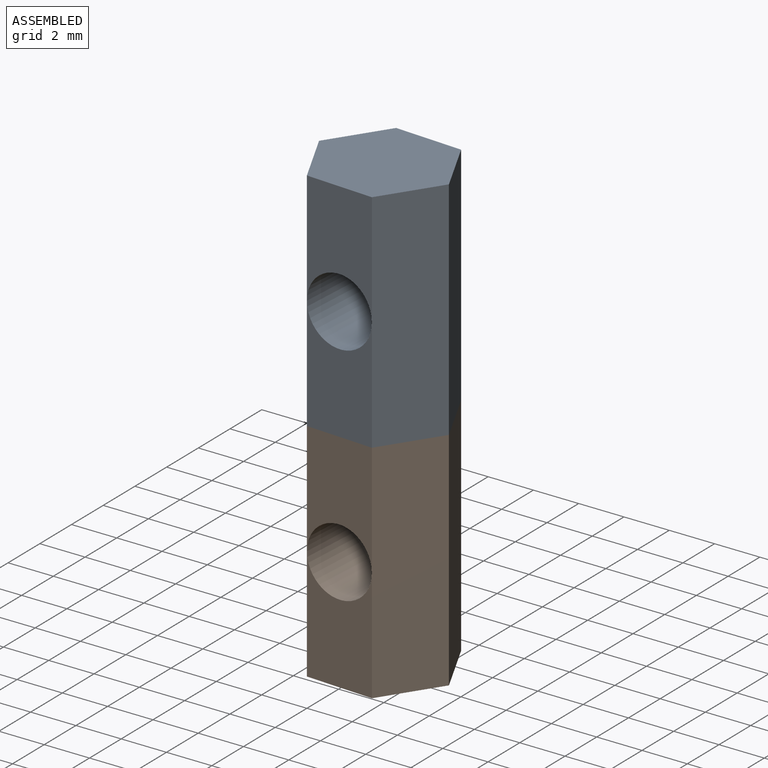
[diagram: assembled view]
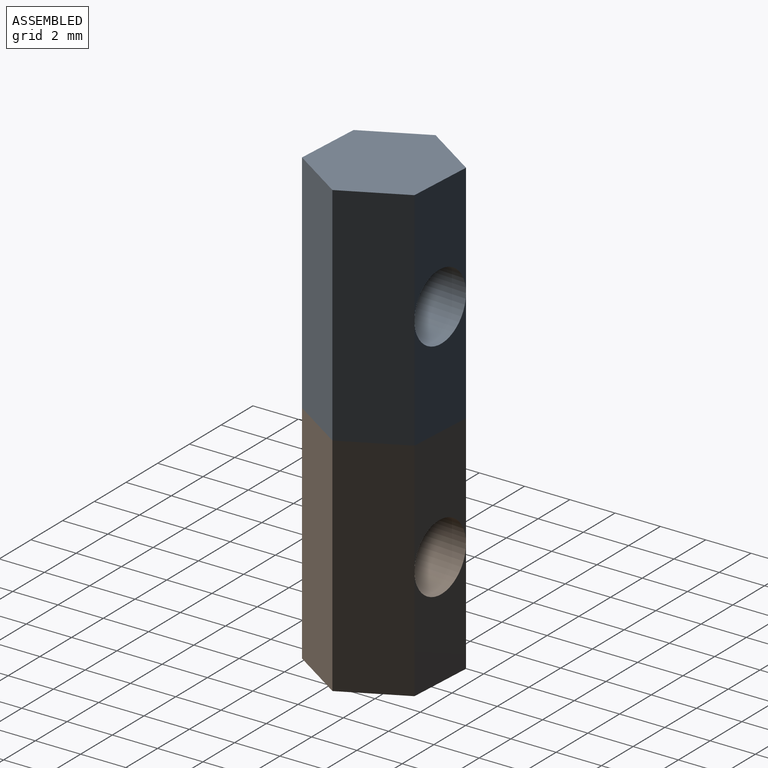
[diagram: assembled view, second angle]
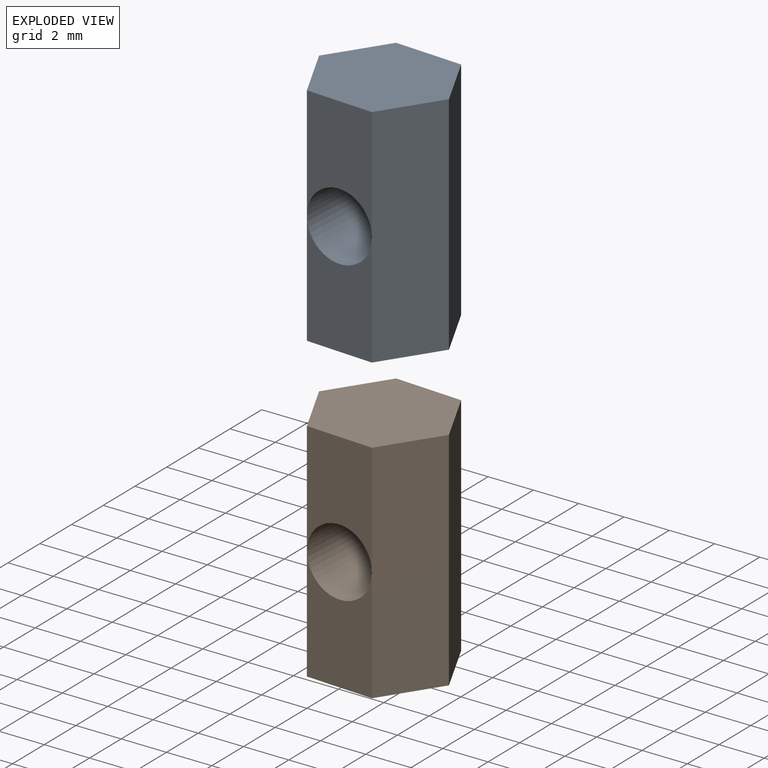
[diagram: exploded view]
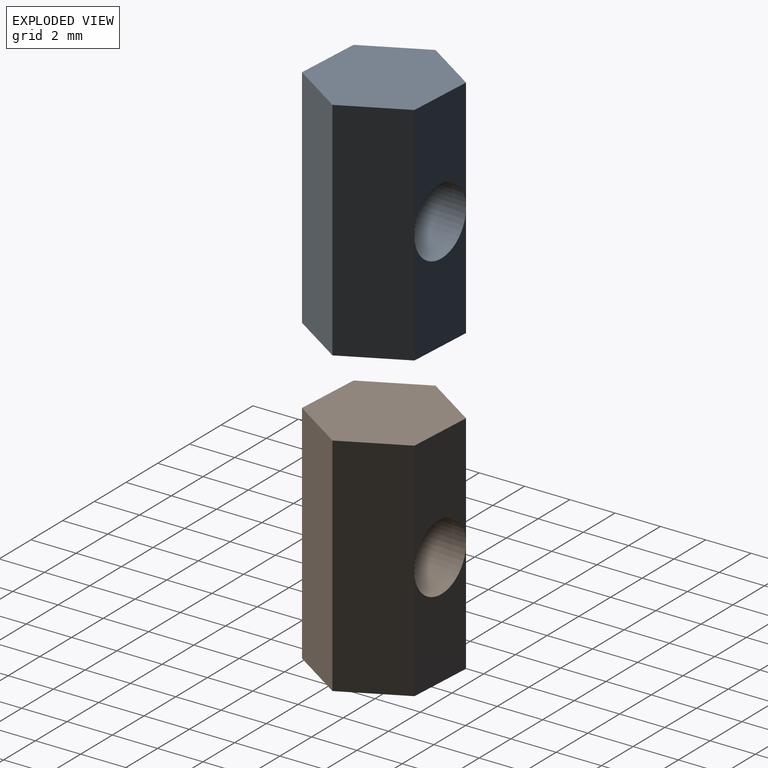
[diagram: exploded view, second angle]
ASSEMBLY  parts=2 mates=3
PART A: 11 faces, bbox 6x5.4x10 mm
  f0: plane 5x2.99mm, normal (-0.06,1,0), area 11.5mm2, adj f3,f5,f9,f10
  f1: plane 5x2.99mm, normal (0.06,-1,0), area 11.5mm2, adj f2,f6,f8,f10
  f2: plane 10x2.68mm, normal (0.89,-0.45,0), area 30mm2, adj f1,f3,f7,f8,f9
  f3: plane 10x2.5mm, normal (0.83,0.55,0), area 30mm2, adj f0,f2,f4,f8,f9
  f4: plane 5x2.99mm, normal (-0.06,1,0), area 11.5mm2, adj f3,f5,f8,f10
  f5: plane 10x2.68mm, normal (-0.89,0.45,0), area 30mm2, adj f0,f4,f6,f8,f9
  f6: plane 10x2.5mm, normal (-0.83,-0.55,0), area 30mm2, adj f1,f5,f7,f8,f9
  f7: plane 5x2.99mm, normal (0.06,-1,0), area 11.5mm2, adj f2,f6,f9,f10
  f8: plane 5.99x5.37mm, normal (0,0,1), area 23.4mm2, adj f1,f2,f3,f4,f5,f6
  f9: plane 5.99x5.37mm, normal (0,0,-1), area 23.4mm2, adj f0,f2,f3,f5,f6,f7
  f10: cylinder r=1.5mm len=5.37mm, axis (0.06,-1,0), area 49mm2, adj f0,f1,f4,f7
PART B: same geometry as A
PLACE A rot(axis=(1,0,0),180deg) t=(9.82,0.27,16.15)mm
PLACE B rot(axis=(0,0,-1),6.9deg) t=(9.82,0.27,-3.85)mm
MATE planar A.f8 <-> B.f8  axis (0,0,-1) through (9.82,0.27,6.15)mm
MATE planar A.f4 <-> B.f1  axis (-0.06,-1,0) through (9.66,-2.32,8.07)mm
MATE parallel A.f3 <-> B.f2  axis (0.83,-0.55,0) through (11.98,-1.16,11.15)mm
